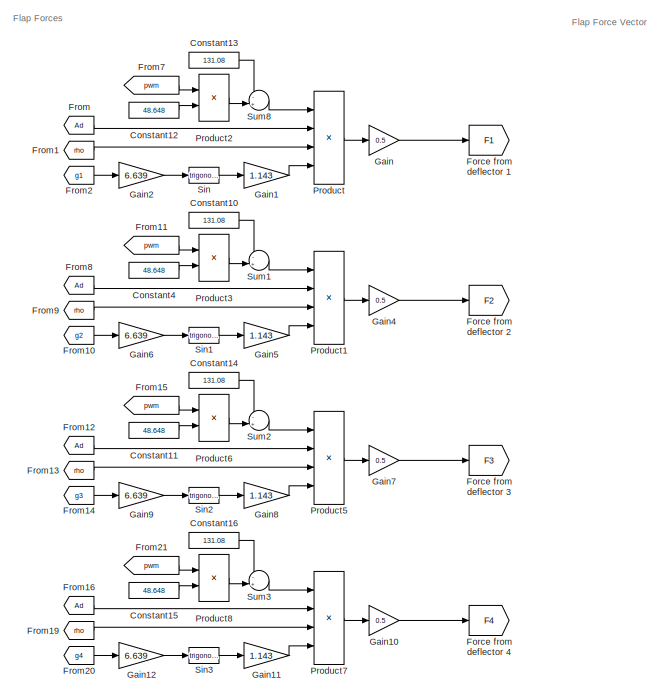
[diagram: root canvas - part 1/4, center side, full height]
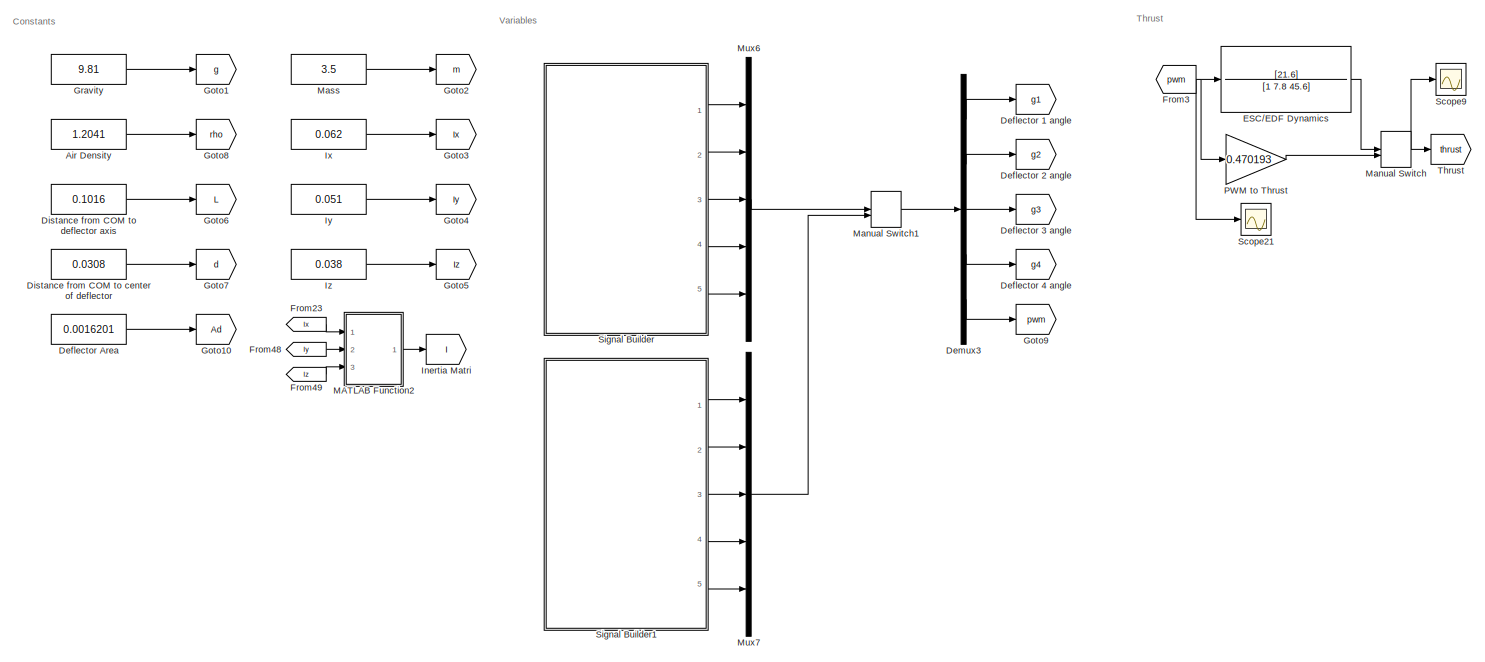
[diagram: root canvas - part 2/4, left side, full height]
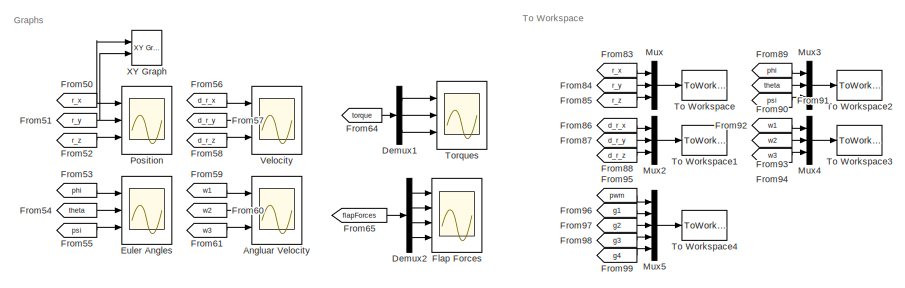
[diagram: root canvas - part 3/4, top right region]
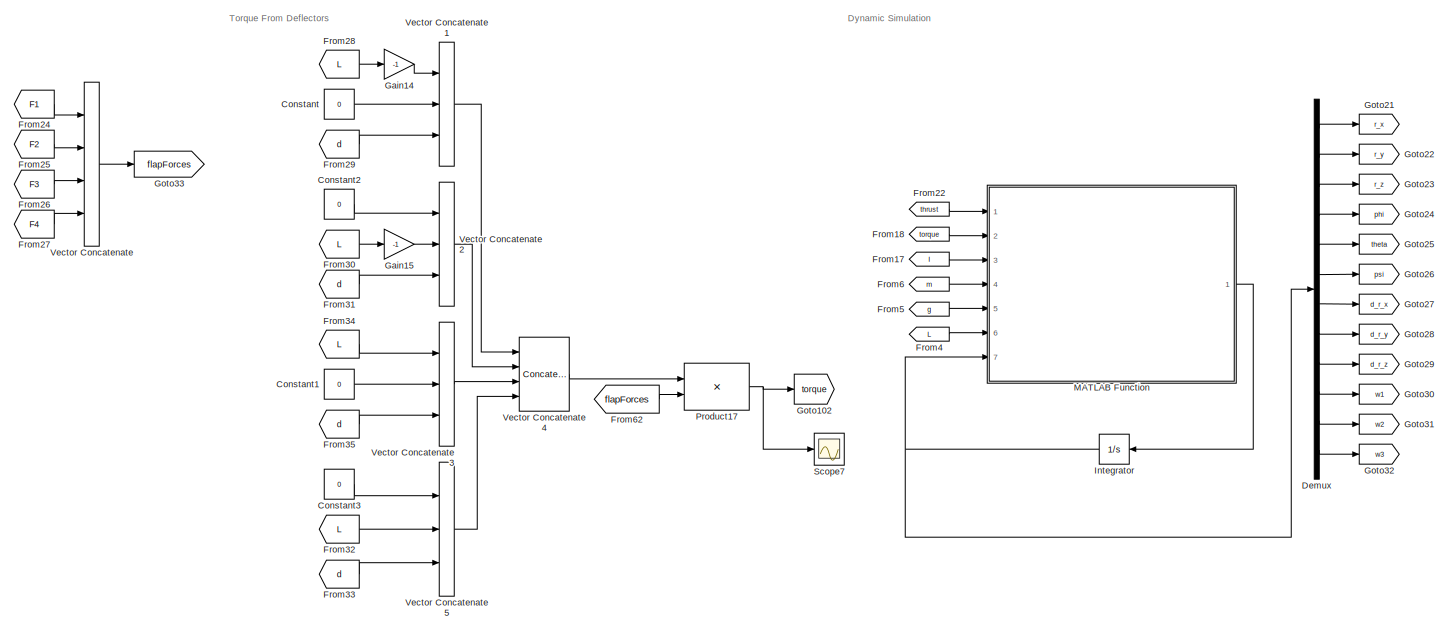
[diagram: root canvas - part 4/4, center side, full height]
MODEL slx_8e98b85fe715
KIND model
CONFIG AbsTol = auto
CONFIG EnableMultiTasking = off
CONFIG FixedStep = 0.01
CONFIG MaxStep = auto
CONFIG MinStep = auto
CONFIG RelTol = 1e-3
CONFIG SampleTimeConstraint = Unconstrained
CONFIG SolverName = FixedStepAuto
CONFIG StartTime = 0.0
CONFIG StopTime = 8
BLOCK [Constant] Air Density
  Value = 1.2041
BLOCK [Scope] Angluar Velocity
  Floating = off
  NumInputPorts = 3
  Ports = [3]
  ScopeSpecificationString = Simulink.scopes.TimeScopeBlockCfg('CurrentConfiguration', extmgr.ConfigurationSet(extmgr.Configuration('Core','General UI',true),extmgr.Configuration('Core','Source UI',true),extmgr.Configuration('Sources','WiredSimulink',true,'DataLoggingVariableName','ScopeData3'),extmgr.Configuration('Visuals','Time Domain',true,'SerializedDisplays',{struct('MinYLimReal','-1.39059','MaxYLimReal','1.3906','YLabe...<+2819ch>
BLOCK [Constant] Constant
  Value = 0
BLOCK [Constant] Constant1
  Value = 0
BLOCK [Constant] Constant10
  Value = 131.08
BLOCK [Constant] Constant11
  Value = 48.648
BLOCK [Constant] Constant12
  Value = 48.648
BLOCK [Constant] Constant13
  Value = 131.08
BLOCK [Constant] Constant14
  Value = 131.08
BLOCK [Constant] Constant15
  Value = 48.648
BLOCK [Constant] Constant16
  Value = 131.08
BLOCK [Constant] Constant2
  Value = 0
BLOCK [Constant] Constant3
  Value = 0
BLOCK [Constant] Constant4
  Value = 48.648
BLOCK [Goto] Deflector 1 angle
  GotoTag = g1
BLOCK [Goto] Deflector 2 angle
  GotoTag = g2
BLOCK [Goto] Deflector 3 angle
  GotoTag = g3
BLOCK [Goto] Deflector 4 angle
  GotoTag = g4
BLOCK [Constant] Deflector Area
  Value = 0.0016201
BLOCK [Demux] Demux
  Outputs = 12
  Ports = [1, 12]
BLOCK [Demux] Demux1
  Outputs = 3
  Ports = [1, 3]
BLOCK [Demux] Demux2
  Ports = [1, 4]
BLOCK [Demux] Demux3
  Outputs = 5
  Ports = [1, 5]
BLOCK [Constant] Distance from COM to center of deflector
  Value = 0.0308
BLOCK [Constant] Distance from COM to deflector axis
  Value = 0.1016
BLOCK [TransferFcn] ESC//EDF Dynamics
  Denominator = [1 7.8 45.6]
  Numerator = [21.6]
BLOCK [Scope] Euler Angles
  Floating = off
  NumInputPorts = 3
  Ports = [3]
  ScopeSpecificationString = Simulink.scopes.TimeScopeBlockCfg('CurrentConfiguration', extmgr.ConfigurationSet(extmgr.Configuration('Core','General UI',true),extmgr.Configuration('Core','Source UI',true),extmgr.Configuration('Sources','WiredSimulink',true,'DataLoggingVariableName','ScopeData1'),extmgr.Configuration('Visuals','Time Domain',true,'SerializedDisplays',{struct('MinYLimReal','-0.31408','MaxYLimReal','0.31947','YLab...<+2817ch>
BLOCK [Scope] Flap Forces
  Floating = off
  NumInputPorts = 4
  Ports = [4]
  ScopeSpecificationString = Simulink.scopes.TimeScopeBlockCfg('CurrentConfiguration', extmgr.ConfigurationSet(extmgr.Configuration('Core','General UI',true),extmgr.Configuration('Core','Source UI',true),extmgr.Configuration('Sources','WiredSimulink',true,'DataLoggingVariableName','ScopeData5'),extmgr.Configuration('Visuals','Time Domain',true,'SerializedDisplays',{struct('MinYLimReal','-4.49141','MaxYLimReal','4.49141','YLab...<+3474ch>
BLOCK [Goto] Force from deflector 1
  GotoTag = F1
BLOCK [Goto] Force from deflector 2
  GotoTag = F2
BLOCK [Goto] Force from deflector 3
  GotoTag = F3
BLOCK [Goto] Force from deflector 4
  GotoTag = F4
BLOCK [From] From
  GotoTag = Ad
BLOCK [From] From1
  GotoTag = rho
BLOCK [From] From10
  GotoTag = g2
BLOCK [From] From11
  GotoTag = pwm
BLOCK [From] From12
  GotoTag = Ad
BLOCK [From] From13
  GotoTag = rho
BLOCK [From] From14
  GotoTag = g3
BLOCK [From] From15
  GotoTag = pwm
BLOCK [From] From16
  GotoTag = Ad
BLOCK [From] From17
  GotoTag = I
BLOCK [From] From18
  GotoTag = torque
BLOCK [From] From19
  GotoTag = rho
BLOCK [From] From2
  GotoTag = g1
BLOCK [From] From20
  GotoTag = g4
BLOCK [From] From21
  GotoTag = pwm
BLOCK [From] From22
  GotoTag = thrust
BLOCK [From] From23
  GotoTag = Ix
BLOCK [From] From24
  GotoTag = F1
BLOCK [From] From25
  GotoTag = F2
BLOCK [From] From26
  GotoTag = F3
BLOCK [From] From27
  GotoTag = F4
BLOCK [From] From28
  GotoTag = L
BLOCK [From] From29
  GotoTag = d
BLOCK [From] From3
  GotoTag = pwm
BLOCK [From] From30
  GotoTag = L
BLOCK [From] From31
  GotoTag = d
BLOCK [From] From32
  GotoTag = L
BLOCK [From] From33
  GotoTag = d
BLOCK [From] From34
  GotoTag = L
BLOCK [From] From35
  GotoTag = d
BLOCK [From] From4
  GotoTag = L
BLOCK [From] From48
  GotoTag = Iy
BLOCK [From] From49
  GotoTag = Iz
BLOCK [From] From5
  GotoTag = g
BLOCK [From] From50
  GotoTag = r_x
BLOCK [From] From51
  GotoTag = r_y
BLOCK [From] From52
  GotoTag = r_z
BLOCK [From] From53
  GotoTag = phi
BLOCK [From] From54
  GotoTag = theta
BLOCK [From] From55
  GotoTag = psi
BLOCK [From] From56
  GotoTag = d_r_x
BLOCK [From] From57
  GotoTag = d_r_y
BLOCK [From] From58
  GotoTag = d_r_z
BLOCK [From] From59
  GotoTag = w1
BLOCK [From] From6
  GotoTag = m
BLOCK [From] From60
  GotoTag = w2
BLOCK [From] From61
  GotoTag = w3
BLOCK [From] From62
  GotoTag = flapForces
BLOCK [From] From64
  GotoTag = torque
BLOCK [From] From65
  GotoTag = flapForces
BLOCK [From] From7
  GotoTag = pwm
BLOCK [From] From8
  GotoTag = Ad
BLOCK [From] From83
  GotoTag = r_x
BLOCK [From] From84
  GotoTag = r_y
BLOCK [From] From85
  GotoTag = r_z
BLOCK [From] From86
  GotoTag = d_r_x
BLOCK [From] From87
  GotoTag = d_r_y
BLOCK [From] From88
  GotoTag = d_r_z
BLOCK [From] From89
  GotoTag = phi
BLOCK [From] From9
  GotoTag = rho
BLOCK [From] From90
  GotoTag = theta
BLOCK [From] From91
  GotoTag = psi
BLOCK [From] From92
  GotoTag = w1
BLOCK [From] From93
  GotoTag = w2
BLOCK [From] From94
  GotoTag = w3
BLOCK [From] From95
  GotoTag = pwm
BLOCK [From] From96
  GotoTag = g1
BLOCK [From] From97
  GotoTag = g2
BLOCK [From] From98
  GotoTag = g3
BLOCK [From] From99
  GotoTag = g4
BLOCK [Gain] Gain
  Gain = 0.5
BLOCK [Gain] Gain1
  Gain = 1.143
BLOCK [Gain] Gain10
  Gain = 0.5
BLOCK [Gain] Gain11
  Gain = 1.143
BLOCK [Gain] Gain12
  Gain = 6.639
BLOCK [Gain] Gain14
  Gain = -1
BLOCK [Gain] Gain15
  Gain = -1
BLOCK [Gain] Gain2
  Gain = 6.639
BLOCK [Gain] Gain4
  Gain = 0.5
BLOCK [Gain] Gain5
  Gain = 1.143
BLOCK [Gain] Gain6
  Gain = 6.639
BLOCK [Gain] Gain7
  Gain = 0.5
BLOCK [Gain] Gain8
  Gain = 1.143
BLOCK [Gain] Gain9
  Gain = 6.639
BLOCK [Goto] Goto1
  GotoTag = g
BLOCK [Goto] Goto10
  GotoTag = Ad
BLOCK [Goto] Goto102
  GotoTag = torque
BLOCK [Goto] Goto2
  GotoTag = m
BLOCK [Goto] Goto21
  GotoTag = r_x
BLOCK [Goto] Goto22
  GotoTag = r_y
BLOCK [Goto] Goto23
  GotoTag = r_z
BLOCK [Goto] Goto24
  GotoTag = phi
BLOCK [Goto] Goto25
  GotoTag = theta
BLOCK [Goto] Goto26
  GotoTag = psi
BLOCK [Goto] Goto27
  GotoTag = d_r_x
BLOCK [Goto] Goto28
  GotoTag = d_r_y
BLOCK [Goto] Goto29
  GotoTag = d_r_z
BLOCK [Goto] Goto3
  GotoTag = Ix
BLOCK [Goto] Goto30
  GotoTag = w1
BLOCK [Goto] Goto31
  GotoTag = w2
BLOCK [Goto] Goto32
  GotoTag = w3
BLOCK [Goto] Goto33
  GotoTag = flapForces
BLOCK [Goto] Goto4
  GotoTag = Iy
BLOCK [Goto] Goto5
  GotoTag = Iz
BLOCK [Goto] Goto6
  GotoTag = L
BLOCK [Goto] Goto7
  GotoTag = d
BLOCK [Goto] Goto8
  GotoTag = rho
BLOCK [Goto] Goto9
  GotoTag = pwm
BLOCK [Constant] Gravity
  Value = 9.81
BLOCK [Goto] Inertia Matri
  GotoTag = I
BLOCK [Integrator] Integrator
  InitialCondition = [0;0;-0.6;deg2rad(0);deg2rad(0);deg2rad(0);0;0;0;0;0;0]
  NameLocation = top
  Ports = [1, 1]
BLOCK [Constant] Ix
  Value = 0.062
BLOCK [Constant] Iy
  Value = 0.051
BLOCK [Constant] Iz
  Value = 0.038
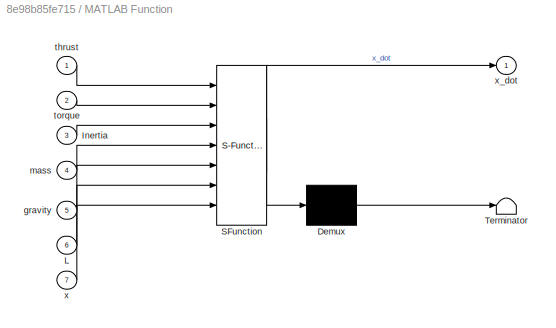
BLOCK [SubSystem] MATLAB Function
  ErrorFcn = Stateflow.Translate.translate
  PermitHierarchicalResolution = ExplicitOnly
  Ports = [7, 1]
  RequestExecContextInheritance = off
  SFBlockType = MATLAB Function
  TreatAsAtomicUnit = on
BLOCK [Demux] MATLAB Function/ Demux 
  Outputs = 1
  Ports = [1, 1]
BLOCK [S-Function] MATLAB Function/ SFunction 
  EnableBusSupport = on
  FunctionName = sf_sfun
  PortCounts = [7 2]
  Ports = [7, 2]
  SFcnIsStateOwnerBlock = off
  SFunctionDeploymentMode = off
  Tag = Stateflow S-Function 2
BLOCK [Terminator] MATLAB Function/ Terminator 
BLOCK [Inport] MATLAB Function/Inertia
  Port = 3
BLOCK [Inport] MATLAB Function/L
  Port = 6
BLOCK [Inport] MATLAB Function/gravity
  Port = 5
BLOCK [Inport] MATLAB Function/mass
  Port = 4
BLOCK [Inport] MATLAB Function/thrust
BLOCK [Inport] MATLAB Function/torque
  Port = 2
BLOCK [Inport] MATLAB Function/x
  Port = 7
BLOCK [Outport] MATLAB Function/x_dot
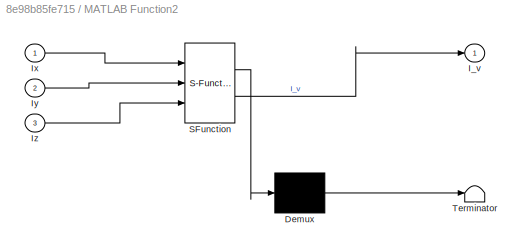
BLOCK [SubSystem] MATLAB Function2
  ErrorFcn = Stateflow.Translate.translate
  PermitHierarchicalResolution = ExplicitOnly
  Ports = [3, 1]
  RequestExecContextInheritance = off
  SFBlockType = MATLAB Function
  TreatAsAtomicUnit = on
BLOCK [Demux] MATLAB Function2/ Demux 
  Outputs = 1
  Ports = [1, 1]
BLOCK [S-Function] MATLAB Function2/ SFunction 
  EnableBusSupport = on
  FunctionName = sf_sfun
  PortCounts = [3 2]
  Ports = [3, 2]
  SFcnIsStateOwnerBlock = off
  SFunctionDeploymentMode = off
  Tag = Stateflow S-Function 3
BLOCK [Terminator] MATLAB Function2/ Terminator 
BLOCK [Outport] MATLAB Function2/I_v
BLOCK [Inport] MATLAB Function2/Ix
BLOCK [Inport] MATLAB Function2/Iy
  Port = 2
BLOCK [Inport] MATLAB Function2/Iz
  Port = 3
BLOCK [ManualSwitch] Manual Switch
BLOCK [ManualSwitch] Manual Switch1
BLOCK [Constant] Mass
  Value = 3.5
BLOCK [Mux] Mux
  DisplayOption = bar
  Inputs = 3
  Ports = [3, 1]
BLOCK [Mux] Mux2
  DisplayOption = bar
  Inputs = 3
  Ports = [3, 1]
BLOCK [Mux] Mux3
  DisplayOption = bar
  Inputs = 3
  Ports = [3, 1]
BLOCK [Mux] Mux4
  DisplayOption = bar
  Inputs = 3
  Ports = [3, 1]
BLOCK [Mux] Mux5
  DisplayOption = bar
  Inputs = 5
  Ports = [5, 1]
BLOCK [Mux] Mux6
  DisplayOption = bar
  Inputs = 5
  Ports = [5, 1]
BLOCK [Mux] Mux7
  DisplayOption = bar
  Inputs = 5
  Ports = [5, 1]
BLOCK [Gain] PWM to Thrust
  Gain = 0.470193
BLOCK [Scope] Position
  Floating = off
  NumInputPorts = 3
  Ports = [3]
  ScopeSpecificationString = Simulink.scopes.TimeScopeBlockCfg('CurrentConfiguration', extmgr.ConfigurationSet(extmgr.Configuration('Core','General UI',true),extmgr.Configuration('Core','Source UI',true),extmgr.Configuration('Sources','WiredSimulink',true),extmgr.Configuration('Visuals','Time Domain',true,'SerializedDisplays',{struct('MinYLimReal','-0.23693','MaxYLimReal','1.7975','YLabelReal','','MinYLimMag','0.00000','MaxYL...<+2776ch>
BLOCK [Product] Product
  Inputs = 4
  Ports = [4, 1]
BLOCK [Product] Product1
  Inputs = 4
  Ports = [4, 1]
BLOCK [Product] Product17
  Multiplication = Matrix(*)
  Ports = [2, 1]
BLOCK [Product] Product2
  Ports = [2, 1]
BLOCK [Product] Product3
  Ports = [2, 1]
BLOCK [Product] Product5
  Inputs = 4
  Ports = [4, 1]
BLOCK [Product] Product6
  Ports = [2, 1]
BLOCK [Product] Product7
  Inputs = 4
  Ports = [4, 1]
BLOCK [Product] Product8
  Ports = [2, 1]
BLOCK [Scope] Scope21
  Floating = off
  NumInputPorts = 1
  Ports = [1]
  ScopeSpecificationString = Simulink.scopes.TimeScopeBlockCfg('CurrentConfiguration', extmgr.ConfigurationSet(extmgr.Configuration('Core','General UI',true),extmgr.Configuration('Core','Source UI',true),extmgr.Configuration('Sources','WiredSimulink',true,'DataLoggingVariableName','ScopeData1'),extmgr.Configuration('Visuals','Time Domain',true,'SerializedDisplays',{struct('MinYLimReal','71.399','MaxYLimReal','78.26542','YLabe...<+1697ch>
BLOCK [Scope] Scope7
  Floating = off
  NumInputPorts = 1
  Ports = [1]
  ScopeSpecificationString = Simulink.scopes.TimeScopeBlockCfg('CurrentConfiguration', extmgr.ConfigurationSet(extmgr.Configuration('Core','General UI',true),extmgr.Configuration('Core','Source UI',true),extmgr.Configuration('Sources','WiredSimulink',true,'DataLoggingVariableName','ScopeData8'),extmgr.Configuration('Visuals','Time Domain',true,'SerializedDisplays',{struct('MinYLimReal','-0.91265','MaxYLimReal','0.91265','YLab...<+1493ch>
BLOCK [Scope] Scope9
  Floating = off
  NumInputPorts = 1
  Ports = [1]
  ScopeSpecificationString = Simulink.scopes.TimeScopeBlockCfg('CurrentConfiguration', extmgr.ConfigurationSet(extmgr.Configuration('Core','General UI',true),extmgr.Configuration('Core','Source UI',true),extmgr.Configuration('Sources','WiredSimulink',true,'DataLoggingVariableName','ScopeData2'),extmgr.Configuration('Visuals','Time Domain',true,'SerializedDisplays',{struct('MinYLimReal','33.57131','MaxYLimReal','36.79985','YLa...<+1430ch>
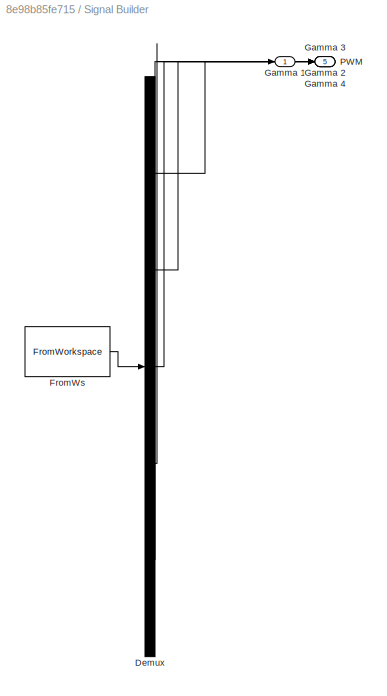
BLOCK [SubSystem] Signal Builder
  ClipboardFcn = sigbuilder_block('clipboard');
  CloseFcn = sigbuilder_block('close');
  ContinueFcn = sigbuilder_block('continue');
  CopyFcn = sigbuilder_block('copy');
  DeleteFcn = sigbuilder_block('delete');
  LoadFcn = sigbuilder_block('load');
  MaskHideContents = on
  ModelCloseFcn = sigbuilder_block('modelClose');
  NameChangeFcn = sigbuilder_block('namechange');
  OpenFcn = sigbuilder_block('open',[6 22.5 1428 689.25 ]);
  PauseFcn = sigbuilder_block('pause');
  Ports = [0, 5]
  PreSaveFcn = sigbuilder_block('preSave');
  RequestExecContextInheritance = off
  StartFcn = sigbuilder_block('start');
  StopFcn = sigbuilder_block('stop');
  Tag = STV Subsys
BLOCK [Demux] Signal Builder/Demux
  DisplayOption = none
  Outputs = 5
  Ports = [1, 5]
  Tag = STV Demux
BLOCK [FromWorkspace] Signal Builder/FromWs
  Tag = STV FromWs
  VariableName = tuvar
BLOCK [Outport] Signal Builder/Gamma 1
  Tag = STV Outport
BLOCK [Outport] Signal Builder/Gamma 2
  Port = 2
  Tag = STV Outport
BLOCK [Outport] Signal Builder/Gamma 3
  Port = 3
  Tag = STV Outport
BLOCK [Outport] Signal Builder/Gamma 4
  Port = 4
  Tag = STV Outport
BLOCK [Outport] Signal Builder/PWM
  Port = 5
  Tag = STV Outport
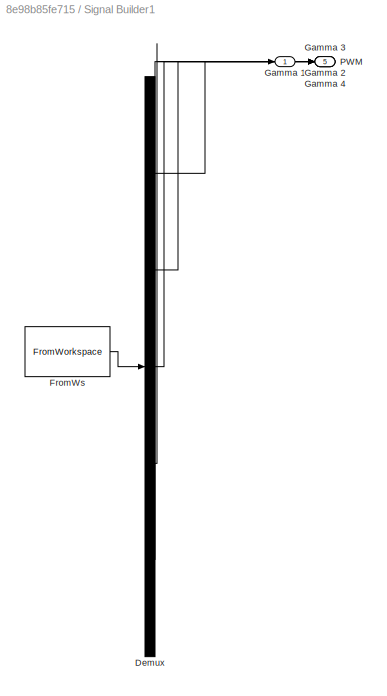
BLOCK [SubSystem] Signal Builder1
  ClipboardFcn = sigbuilder_block('clipboard');
  CloseFcn = sigbuilder_block('close');
  ContinueFcn = sigbuilder_block('continue');
  CopyFcn = sigbuilder_block('copy');
  DeleteFcn = sigbuilder_block('delete');
  LoadFcn = sigbuilder_block('load');
  MaskHideContents = on
  ModelCloseFcn = sigbuilder_block('modelClose');
  NameChangeFcn = sigbuilder_block('namechange');
  OpenFcn = sigbuilder_block('open',[6 22.5 1428 689.25 ]);
  PauseFcn = sigbuilder_block('pause');
  Ports = [0, 5]
  PreSaveFcn = sigbuilder_block('preSave');
  RequestExecContextInheritance = off
  StartFcn = sigbuilder_block('start');
  StopFcn = sigbuilder_block('stop');
  Tag = STV Subsys
BLOCK [Demux] Signal Builder1/Demux
  DisplayOption = none
  Outputs = 5
  Ports = [1, 5]
  Tag = STV Demux
BLOCK [FromWorkspace] Signal Builder1/FromWs
  Tag = STV FromWs
  VariableName = tuvar
BLOCK [Outport] Signal Builder1/Gamma 1
  Tag = STV Outport
BLOCK [Outport] Signal Builder1/Gamma 2
  Port = 2
  Tag = STV Outport
BLOCK [Outport] Signal Builder1/Gamma 3
  Port = 3
  Tag = STV Outport
BLOCK [Outport] Signal Builder1/Gamma 4
  Port = 4
  Tag = STV Outport
BLOCK [Outport] Signal Builder1/PWM
  Port = 5
  Tag = STV Outport
BLOCK [Trigonometry] Sin
  ApproximationMethod = CORDIC
  Ports = [1, 1]
BLOCK [Trigonometry] Sin1
  ApproximationMethod = CORDIC
  Ports = [1, 1]
BLOCK [Trigonometry] Sin2
  ApproximationMethod = CORDIC
  Ports = [1, 1]
BLOCK [Trigonometry] Sin3
  ApproximationMethod = CORDIC
  Ports = [1, 1]
BLOCK [Sum] Sum1
  Inputs = -+|
  Ports = [2, 1]
BLOCK [Sum] Sum2
  Inputs = -+|
  Ports = [2, 1]
BLOCK [Sum] Sum3
  Inputs = -+|
  Ports = [2, 1]
BLOCK [Sum] Sum8
  Inputs = -+|
  Ports = [2, 1]
BLOCK [Goto] Thrust
  GotoTag = thrust
BLOCK [ToWorkspace] To Workspace
  FixptAsFi = on
  MaxDataPoints = inf
  Ports = [1]
  SampleTime = -1
  SaveFormat = Timeseries
  VariableName = pos
BLOCK [ToWorkspace] To Workspace1
  FixptAsFi = on
  MaxDataPoints = inf
  Ports = [1]
  SampleTime = -1
  SaveFormat = Timeseries
  VariableName = vel
BLOCK [ToWorkspace] To Workspace2
  FixptAsFi = on
  MaxDataPoints = inf
  Ports = [1]
  SampleTime = -1
  SaveFormat = Timeseries
  VariableName = euler
BLOCK [ToWorkspace] To Workspace3
  FixptAsFi = on
  MaxDataPoints = inf
  Ports = [1]
  SampleTime = -1
  SaveFormat = Timeseries
  VariableName = omega
BLOCK [ToWorkspace] To Workspace4
  FixptAsFi = on
  MaxDataPoints = inf
  Ports = [1]
  SampleTime = -1
  SaveFormat = Timeseries
  VariableName = input
BLOCK [Scope] Torques
  Floating = off
  NumInputPorts = 3
  Ports = [3]
  ScopeSpecificationString = Simulink.scopes.TimeScopeBlockCfg('CurrentConfiguration', extmgr.ConfigurationSet(extmgr.Configuration('Core','General UI',true),extmgr.Configuration('Core','Source UI',true),extmgr.Configuration('Sources','WiredSimulink',true,'DataLoggingVariableName','ScopeData4'),extmgr.Configuration('Visuals','Time Domain',true,'SerializedDisplays',{struct('MinYLimReal','-0.91265','MaxYLimReal','0.91265','YLab...<+2777ch>
BLOCK [Concatenate] Vector Concatenate
  NumInputs = 4
  Ports = [4, 1]
BLOCK [Concatenate] Vector Concatenate1
  NumInputs = 3
  Ports = [3, 1]
BLOCK [Concatenate] Vector Concatenate2
  NumInputs = 3
  Ports = [3, 1]
BLOCK [Concatenate] Vector Concatenate3
  NumInputs = 3
  Ports = [3, 1]
BLOCK [Concatenate] Vector Concatenate4
  ConcatenateDimension = 2
  Mode = Multidimensional array
  NumInputs = 4
  Ports = [4, 1]
BLOCK [Concatenate] Vector Concatenate5
  NumInputs = 3
  Ports = [3, 1]
BLOCK [Scope] Velocity
  Floating = off
  NumInputPorts = 3
  Ports = [3]
  ScopeSpecificationString = Simulink.scopes.TimeScopeBlockCfg('CurrentConfiguration', extmgr.ConfigurationSet(extmgr.Configuration('Core','General UI',true),extmgr.Configuration('Core','Source UI',true),extmgr.Configuration('Sources','WiredSimulink',true,'DataLoggingVariableName','ScopeData2'),extmgr.Configuration('Visuals','Time Domain',true,'SerializedDisplays',{struct('MinYLimReal','-4.95557','MaxYLimReal','4.05716','YLab...<+2820ch>
BLOCK [Reference] XY Graph  REF=simulink/Sinks/XY Graph
  Ports = [2]
  SourceBlock = simulink/Sinks/XY Graph
  SourceProductBaseCode = SL
  SourceType = XY scope.
ANNOTATION (root): Constants
ANNOTATION (root): Dynamic Simulation
ANNOTATION (root): Flap Force Vector
ANNOTATION (root): Flap Forces
ANNOTATION (root): Graphs
ANNOTATION (root): Thrust
ANNOTATION (root): To Workspace
ANNOTATION (root): Torque From Deflectors
ANNOTATION (root): Variables
LINE Air Density:1 -> Goto8:1
LINE Constant10:1 -> Sum1:1
LINE Constant11:1 -> Product6:2
LINE Constant12:1 -> Product2:2
LINE Constant13:1 -> Sum8:1
LINE Constant14:1 -> Sum2:1
LINE Constant15:1 -> Product8:2
LINE Constant16:1 -> Sum3:1
LINE Constant1:1 -> Vector Concatenate3:2
LINE Constant2:1 -> Vector Concatenate2:1
LINE Constant3:1 -> Vector Concatenate5:1
LINE Constant4:1 -> Product3:2
LINE Constant:1 -> Vector Concatenate1:2
LINE Deflector Area:1 -> Goto10:1
LINE Demux1:1 -> Torques:1
LINE Demux1:2 -> Torques:2
LINE Demux1:3 -> Torques:3
LINE Demux2:1 -> Flap Forces:1
LINE Demux2:2 -> Flap Forces:2
LINE Demux2:3 -> Flap Forces:3
LINE Demux2:4 -> Flap Forces:4
LINE Demux3:1 -> Deflector 1 angle:1
LINE Demux3:2 -> Deflector 2 angle:1
LINE Demux3:3 -> Deflector 3 angle:1
LINE Demux3:4 -> Deflector 4 angle:1
LINE Demux3:5 -> Goto9:1
LINE Demux:1 -> Goto21:1
LINE Demux:10 -> Goto30:1
LINE Demux:11 -> Goto31:1
LINE Demux:12 -> Goto32:1
LINE Demux:2 -> Goto22:1
LINE Demux:3 -> Goto23:1
LINE Demux:4 -> Goto24:1
LINE Demux:5 -> Goto25:1
LINE Demux:6 -> Goto26:1
LINE Demux:7 -> Goto27:1
LINE Demux:8 -> Goto28:1
LINE Demux:9 -> Goto29:1
LINE Distance from COM to center of deflector:1 -> Goto7:1
LINE Distance from COM to deflector axis:1 -> Goto6:1
LINE ESC//EDF Dynamics:1 -> Manual Switch:1
LINE From10:1 -> Gain6:1
LINE From11:1 -> Product3:1
LINE From12:1 -> Product5:2
LINE From13:1 -> Product5:3
LINE From14:1 -> Gain9:1
LINE From15:1 -> Product6:1
LINE From16:1 -> Product7:2
LINE From17:1 -> MATLAB Function:3
LINE From18:1 -> MATLAB Function:2
LINE From19:1 -> Product7:3
LINE From1:1 -> Product:3
LINE From20:1 -> Gain12:1
LINE From21:1 -> Product8:1
LINE From22:1 -> MATLAB Function:1
LINE From23:1 -> MATLAB Function2:1
LINE From24:1 -> Vector Concatenate:1
LINE From25:1 -> Vector Concatenate:2
LINE From26:1 -> Vector Concatenate:3
LINE From27:1 -> Vector Concatenate:4
LINE From28:1 -> Gain14:1
LINE From29:1 -> Vector Concatenate1:3
LINE From2:1 -> Gain2:1
LINE From30:1 -> Gain15:1
LINE From31:1 -> Vector Concatenate2:3
LINE From32:1 -> Vector Concatenate5:2
LINE From33:1 -> Vector Concatenate5:3
LINE From34:1 -> Vector Concatenate3:1
LINE From35:1 -> Vector Concatenate3:3
NET From3:1 -> ESC//EDF Dynamics:1, PWM to Thrust:1, Scope21:1
LINE From48:1 -> MATLAB Function2:2
LINE From49:1 -> MATLAB Function2:3
LINE From4:1 -> MATLAB Function:6
NET From50:1 -> Position:1, XY Graph:1
NET From51:1 -> Position:2, XY Graph:2
LINE From52:1 -> Position:3
LINE From53:1 -> Euler Angles:1
LINE From54:1 -> Euler Angles:2
LINE From55:1 -> Euler Angles:3
LINE From56:1 -> Velocity:1
LINE From57:1 -> Velocity:2
LINE From58:1 -> Velocity:3
LINE From59:1 -> Angluar Velocity:1
LINE From5:1 -> MATLAB Function:5
LINE From60:1 -> Angluar Velocity:2
LINE From61:1 -> Angluar Velocity:3
LINE From62:1 -> Product17:2
LINE From64:1 -> Demux1:1
LINE From65:1 -> Demux2:1
LINE From6:1 -> MATLAB Function:4
LINE From7:1 -> Product2:1
LINE From83:1 -> Mux:1
LINE From84:1 -> Mux:2
LINE From85:1 -> Mux:3
LINE From86:1 -> Mux2:1
LINE From87:1 -> Mux2:2
LINE From88:1 -> Mux2:3
LINE From89:1 -> Mux3:1
LINE From8:1 -> Product1:2
LINE From90:1 -> Mux3:2
LINE From91:1 -> Mux3:3
LINE From92:1 -> Mux4:1
LINE From93:1 -> Mux4:2
LINE From94:1 -> Mux4:3
LINE From95:1 -> Mux5:1
LINE From96:1 -> Mux5:2
LINE From97:1 -> Mux5:3
LINE From98:1 -> Mux5:4
LINE From99:1 -> Mux5:5
LINE From9:1 -> Product1:3
LINE From:1 -> Product:2
LINE Gain10:1 -> Force from deflector 4:1
LINE Gain11:1 -> Product7:4
LINE Gain12:1 -> Sin3:1
LINE Gain14:1 -> Vector Concatenate1:1
LINE Gain15:1 -> Vector Concatenate2:2
LINE Gain1:1 -> Product:4
LINE Gain2:1 -> Sin:1
LINE Gain4:1 -> Force from deflector 2:1
LINE Gain5:1 -> Product1:4
LINE Gain6:1 -> Sin1:1
LINE Gain7:1 -> Force from deflector 3:1
LINE Gain8:1 -> Product5:4
LINE Gain9:1 -> Sin2:1
LINE Gain:1 -> Force from deflector 1:1
LINE Gravity:1 -> Goto1:1
NET Integrator:1 -> Demux:1, MATLAB Function:7
LINE Ix:1 -> Goto3:1
LINE Iy:1 -> Goto4:1
LINE Iz:1 -> Goto5:1
LINE MATLAB Function2:1 -> Inertia Matri:1
LINE MATLAB Function:1 -> Integrator:1
LINE Manual Switch1:1 -> Demux3:1
NET Manual Switch:1 -> Scope9:1, Thrust:1
LINE Mass:1 -> Goto2:1
LINE Mux2:1 -> To Workspace1:1
LINE Mux3:1 -> To Workspace2:1
LINE Mux4:1 -> To Workspace3:1
LINE Mux5:1 -> To Workspace4:1
LINE Mux6:1 -> Manual Switch1:1
LINE Mux7:1 -> Manual Switch1:2
LINE Mux:1 -> To Workspace:1
LINE PWM to Thrust:1 -> Manual Switch:2
NET Product17:1 -> Goto102:1, Scope7:1
LINE Product1:1 -> Gain4:1
LINE Product2:1 -> Sum8:2
LINE Product3:1 -> Sum1:2
LINE Product5:1 -> Gain7:1
LINE Product6:1 -> Sum2:2
LINE Product7:1 -> Gain10:1
LINE Product8:1 -> Sum3:2
LINE Product:1 -> Gain:1
LINE Signal Builder1:1 -> Mux7:1
LINE Signal Builder1:2 -> Mux7:2
LINE Signal Builder1:3 -> Mux7:3
LINE Signal Builder1:4 -> Mux7:4
LINE Signal Builder1:5 -> Mux7:5
LINE Signal Builder:1 -> Mux6:1
LINE Signal Builder:2 -> Mux6:2
LINE Signal Builder:3 -> Mux6:3
LINE Signal Builder:4 -> Mux6:4
LINE Signal Builder:5 -> Mux6:5
LINE Sin1:1 -> Gain5:1
LINE Sin2:1 -> Gain8:1
LINE Sin3:1 -> Gain11:1
LINE Sin:1 -> Gain1:1
LINE Sum1:1 -> Product1:1
LINE Sum2:1 -> Product5:1
LINE Sum3:1 -> Product7:1
LINE Sum8:1 -> Product:1
LINE Vector Concatenate1:1 -> Vector Concatenate4:1
LINE Vector Concatenate2:1 -> Vector Concatenate4:2
LINE Vector Concatenate3:1 -> Vector Concatenate4:3
LINE Vector Concatenate4:1 -> Product17:1
LINE Vector Concatenate5:1 -> Vector Concatenate4:4
LINE Vector Concatenate:1 -> Goto33:1
note: NET lines group one-source signal fan-out (src -> all destinations, sorted); 1:1 wires keep LINE
CHART MATLAB Function states=1 transitions=1
  STATE_LABEL 'eML_blk_kernel()'
  STATE_LABEL 'SCRIPT:\nfunction x_dot = dynamics(thrust,torque,Inertia,mass,gravity,L,x)\nx_dot=zeros(12,1);\nI = diag([Inertia(1,1),Inertia(2,2),Inertia(3,3)]);\n\n\n\n\nphi = x(4);\ntheta = x(5);\npsi = x(6);\n\nomega = [x(10);x(11);x(12)]; \n\nomegaSkew = [0 -x(12) x(11);\n             x(12) 0 x(10);\n             -x(11) x(10) 0];\n\n         \ninv_H = [1 sin(phi)*tan(theta) cos(phi)*tan(theta);\n         0 cos(phi) -sin(phi);\n...<+1105ch>'
CHART MATLAB Function2 states=1 transitions=1
  STATE_LABEL 'eML_blk_kernel()'
  STATE_LABEL 'SCRIPT:\nfunction I_v = Inertia(Ix,Iy,Iz)\nI_v = [Ix 0 0; 0 Iy 0; 0 0 Iz];\nend\n'
CHART  states=0 transitions=0
CHART  states=0 transitions=0
